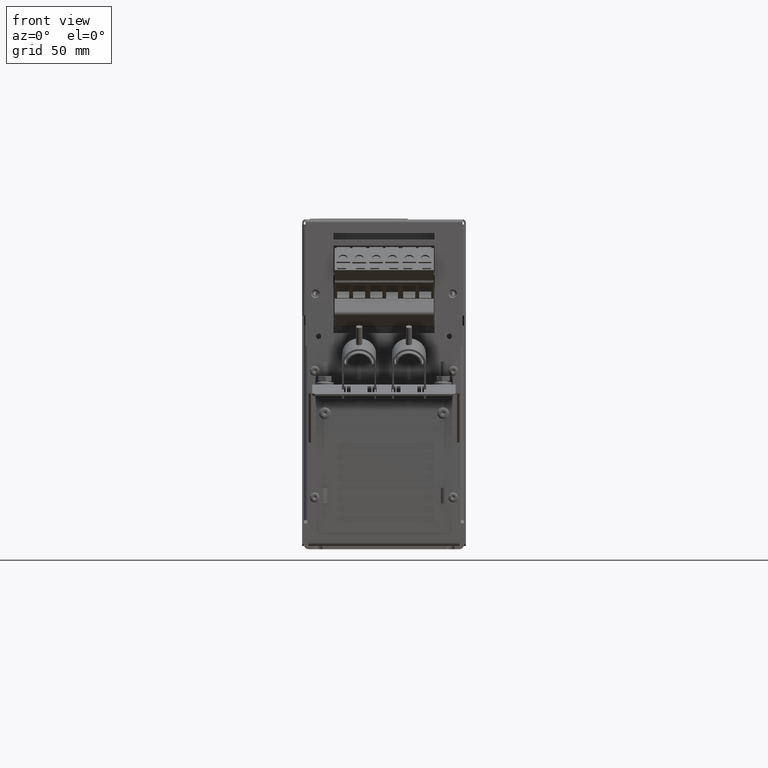
[diagram: clean part render]
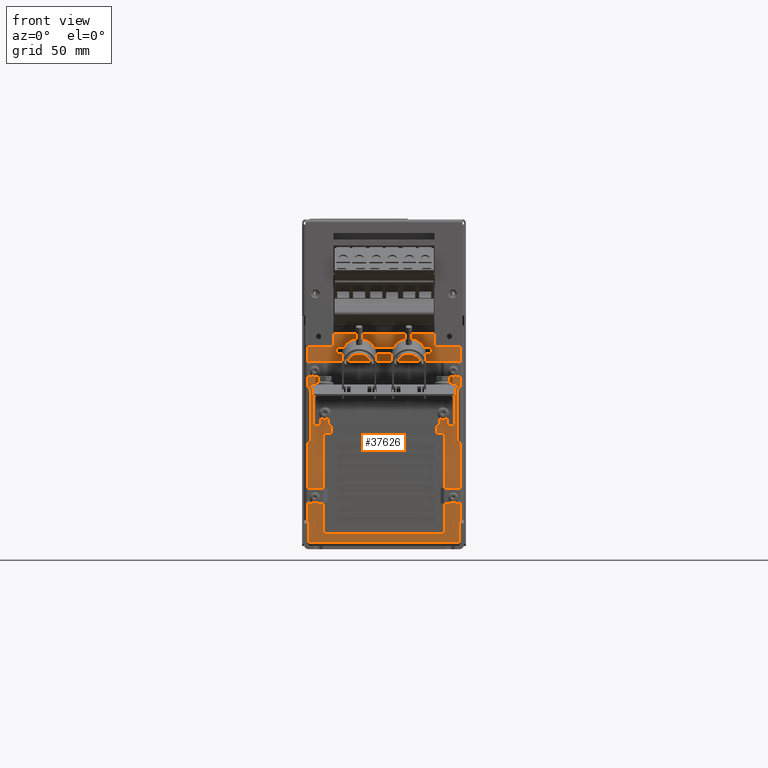
[diagram: same view with one face highlighted and labeled with its STEP entity id]
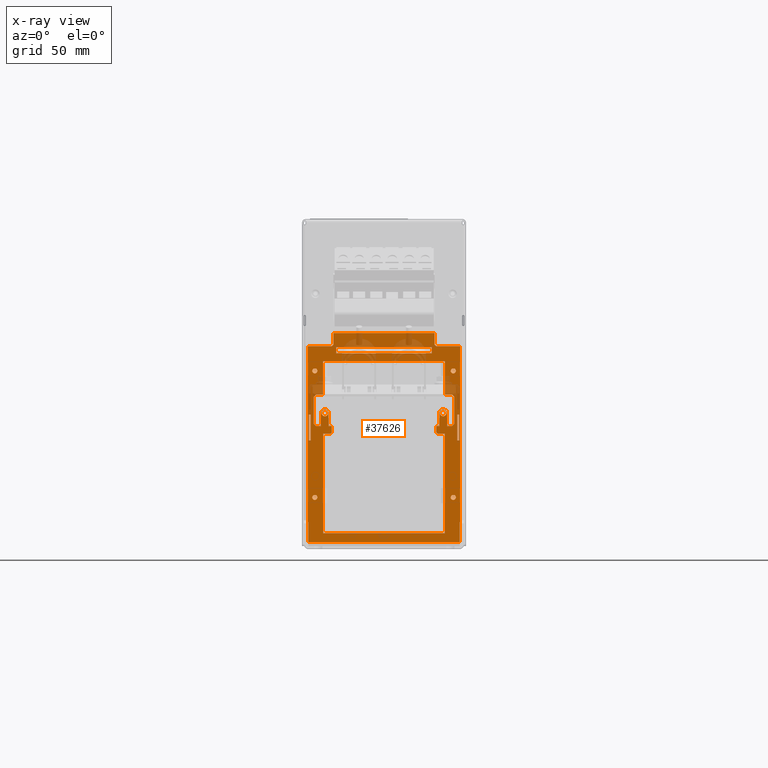
[diagram: x-ray of the same camera — body ghosted, the highlighted face saturated]
A machine part, front view. The second image highlights one B-rep face of the part: STEP entity #37626.
The next image is the same camera in x-ray: the body ghosted, the highlighted face saturated — about 13% of this face is hidden behind the body in this view.
In plain terms, the highlighted planar face has unit normal (0, 1, 0).
Its self-contained STEP definition (entity closure, byte-faithful):
#347=DIRECTION('',(0.E0,3.762154552718E-13,-1.E0));
#348=VECTOR('',#347,2.050965720048E-2);
#349=CARTESIAN_POINT('',(-5.8E-2,-1.76E-1,1.043412326860E-1));
#350=LINE('',#349,#348);
#367=DIRECTION('',(1.E0,-1.679212324746E-12,5.807854197570E-12));
#368=VECTOR('',#367,2.E-3);
#369=CARTESIAN_POINT('',(-6.E-2,-1.76E-1,1.043412326860E-1));
#370=LINE('',#369,#368);
#375=DIRECTION('',(0.E0,-3.058442190341E-13,1.E0));
#376=VECTOR('',#375,2.050965720046E-2);
#377=CARTESIAN_POINT('',(-6.E-2,-1.76E-1,8.383157548552E-2));
#378=LINE('',#377,#376);
#395=DIRECTION('',(-1.E0,9.714451465470E-13,1.013078509970E-12));
#396=VECTOR('',#395,2.E-3);
#397=CARTESIAN_POINT('',(-5.8E-2,-1.76E-1,8.383157548552E-2));
#398=LINE('',#397,#396);
#399=DIRECTION('',(7.071067811865E-1,0.E0,7.071067811866E-1));
#400=VECTOR('',#399,2.121320343560E-3);
#401=CARTESIAN_POINT('',(-4.175E-2,-1.76E-1,1.585E-1));
#402=LINE('',#401,#400);
#403=DIRECTION('',(0.E0,0.E0,1.E0));
#404=VECTOR('',#403,1.8E-2);
#405=CARTESIAN_POINT('',(-4.025E-2,-1.76E-1,1.6E-1));
#406=LINE('',#405,#404);
#407=DIRECTION('',(7.071067811866E-1,0.E0,-7.071067811865E-1));
#408=VECTOR('',#407,2.121320343560E-3);
#409=CARTESIAN_POINT('',(4.025E-2,-1.76E-1,1.6E-1));
#410=LINE('',#409,#408);
#411=DIRECTION('',(1.E0,0.E0,0.E0));
#412=VECTOR('',#411,1.875E-2);
#413=CARTESIAN_POINT('',(4.175E-2,-1.76E-1,1.585E-1));
#414=LINE('',#413,#412);
#415=CARTESIAN_POINT('',(-4.7E-2,-1.76E-1,1.0555E-1));
#416=DIRECTION('',(0.E0,-1.E0,0.E0));
#417=DIRECTION('',(-1.609612193583E-1,0.E0,9.869607316721E-1));
#418=AXIS2_PLACEMENT_3D('',#415,#416,#417);
#420=CARTESIAN_POINT('',(-4.7E-2,-1.76E-1,1.0555E-1));
#421=DIRECTION('',(0.E0,-1.E0,0.E0));
#422=DIRECTION('',(1.609612193583E-1,0.E0,-9.869607316721E-1));
#423=AXIS2_PLACEMENT_3D('',#420,#421,#422);
#425=CARTESIAN_POINT('',(5.5E-2,-1.76E-1,1.391E-1));
#426=DIRECTION('',(0.E0,-1.E0,0.E0));
#427=DIRECTION('',(-9.557024428566E-1,0.E0,2.943345727535E-1));
#428=AXIS2_PLACEMENT_3D('',#425,#426,#427);
#430=CARTESIAN_POINT('',(5.5E-2,-1.76E-1,1.391E-1));
#431=DIRECTION('',(0.E0,-1.E0,0.E0));
#432=DIRECTION('',(9.557024428565E-1,0.E0,-2.943345727536E-1));
#433=AXIS2_PLACEMENT_3D('',#430,#431,#432);
#435=CARTESIAN_POINT('',(5.5E-2,-1.76E-1,3.86E-2));
#436=DIRECTION('',(0.E0,-1.E0,0.E0));
#437=DIRECTION('',(-9.557024428544E-1,0.E0,2.943345727604E-1));
#438=AXIS2_PLACEMENT_3D('',#435,#436,#437);
#440=CARTESIAN_POINT('',(5.5E-2,-1.76E-1,3.86E-2));
#441=DIRECTION('',(0.E0,-1.E0,0.E0));
#442=DIRECTION('',(9.557024428544E-1,0.E0,-2.943345727604E-1));
#443=AXIS2_PLACEMENT_3D('',#440,#441,#442);
#445=CARTESIAN_POINT('',(4.7E-2,-1.76E-1,1.0555E-1));
#446=DIRECTION('',(0.E0,-1.E0,0.E0));
#447=DIRECTION('',(-1.609612193583E-1,0.E0,-9.869607316721E-1));
#448=AXIS2_PLACEMENT_3D('',#445,#446,#447);
#450=CARTESIAN_POINT('',(4.7E-2,-1.76E-1,1.0555E-1));
#451=DIRECTION('',(0.E0,-1.E0,0.E0));
#452=DIRECTION('',(1.609612193583E-1,0.E0,9.869607316721E-1));
#453=AXIS2_PLACEMENT_3D('',#450,#451,#452);
#455=CARTESIAN_POINT('',(-5.5E-2,-1.76E-1,3.86E-2));
#456=DIRECTION('',(0.E0,-1.E0,0.E0));
#457=DIRECTION('',(-9.557024428544E-1,0.E0,2.943345727604E-1));
#458=AXIS2_PLACEMENT_3D('',#455,#456,#457);
#460=CARTESIAN_POINT('',(-5.5E-2,-1.76E-1,3.86E-2));
#461=DIRECTION('',(0.E0,-1.E0,0.E0));
#462=DIRECTION('',(9.557024428544E-1,0.E0,-2.943345727604E-1));
#463=AXIS2_PLACEMENT_3D('',#460,#461,#462);
#465=DIRECTION('',(0.E0,-1.420957654805E-13,-1.E0));
#466=VECTOR('',#465,2.050965720045E-2);
#467=CARTESIAN_POINT('',(5.8E-2,-1.76E-1,1.043412326860E-1));
#468=LINE('',#467,#466);
#469=DIRECTION('',(-7.071067811865E-1,0.E0,-7.071067811865E-1));
#470=VECTOR('',#469,2.828427124746E-3);
#471=CARTESIAN_POINT('',(-5.4E-2,-1.76E-1,1.203E-1));
#472=LINE('',#471,#470);
#473=DIRECTION('',(7.071067811865E-1,0.E0,-7.071067811865E-1));
#474=VECTOR('',#473,2.828427124746E-3);
#475=CARTESIAN_POINT('',(-5.6E-2,-1.76E-1,9.73E-2));
#476=LINE('',#475,#474);
#477=CARTESIAN_POINT('',(-4.7E-2,-1.76E-1,1.0555E-1));
#478=DIRECTION('',(0.E0,1.E0,0.E0));
#479=DIRECTION('',(-1.E0,0.E0,0.E0));
#480=AXIS2_PLACEMENT_3D('',#477,#478,#479);
#482=CARTESIAN_POINT('',(-4.7E-2,-1.76E-1,1.0555E-1));
#483=DIRECTION('',(0.E0,1.E0,0.E0));
#484=DIRECTION('',(0.E0,0.E0,1.E0));
#485=AXIS2_PLACEMENT_3D('',#482,#483,#484);
#487=DIRECTION('',(-7.071067811865E-1,0.E0,-7.071067811865E-1));
#488=VECTOR('',#487,1.414213562373E-3);
#489=CARTESIAN_POINT('',(-4.15E-2,-1.76E-1,9.03E-2));
#490=LINE('',#489,#488);
#491=DIRECTION('',(-7.071067811865E-1,0.E0,7.071067811865E-1));
#492=VECTOR('',#491,1.414213562373E-3);
#493=CARTESIAN_POINT('',(4.25E-2,-1.76E-1,8.93E-2));
#494=LINE('',#493,#492);
#495=CARTESIAN_POINT('',(4.7E-2,-1.76E-1,1.0555E-1));
#496=DIRECTION('',(0.E0,1.E0,0.E0));
#497=DIRECTION('',(-1.E0,0.E0,0.E0));
#498=AXIS2_PLACEMENT_3D('',#495,#496,#497);
#500=CARTESIAN_POINT('',(4.7E-2,-1.76E-1,1.0555E-1));
#501=DIRECTION('',(0.E0,1.E0,0.E0));
#502=DIRECTION('',(0.E0,0.E0,1.E0));
#503=AXIS2_PLACEMENT_3D('',#500,#501,#502);
#505=DIRECTION('',(7.071067811865E-1,0.E0,7.071067811865E-1));
#506=VECTOR('',#505,2.828427124746E-3);
#507=CARTESIAN_POINT('',(5.4E-2,-1.76E-1,9.53E-2));
#508=LINE('',#507,#506);
#509=DIRECTION('',(-7.071067811865E-1,0.E0,7.071067811865E-1));
#510=VECTOR('',#509,2.828427124746E-3);
#511=CARTESIAN_POINT('',(5.6E-2,-1.76E-1,1.183E-1));
#512=LINE('',#511,#510);
#513=CARTESIAN_POINT('',(-5.5E-2,-1.76E-1,1.391E-1));
#514=DIRECTION('',(0.E0,-1.E0,0.E0));
#515=DIRECTION('',(-9.557024428566E-1,0.E0,2.943345727535E-1));
#516=AXIS2_PLACEMENT_3D('',#513,#514,#515);
#518=CARTESIAN_POINT('',(-5.5E-2,-1.76E-1,1.391E-1));
#519=DIRECTION('',(0.E0,-1.E0,0.E0));
#520=DIRECTION('',(9.557024428565E-1,0.E0,-2.943345727536E-1));
#521=AXIS2_PLACEMENT_3D('',#518,#519,#520);
#523=DIRECTION('',(-1.E0,0.E0,0.E0));
#524=VECTOR('',#523,1.875E-2);
#525=CARTESIAN_POINT('',(-4.175E-2,-1.76E-1,1.585E-1));
#526=LINE('',#525,#524);
#567=DIRECTION('',(-1.E0,-3.330669073878E-13,-2.442490654177E-12));
#568=VECTOR('',#567,2.499999999998E-4);
#569=CARTESIAN_POINT('',(4.025E-2,-1.76E-1,1.78E-1));
#570=LINE('',#569,#568);
#601=DIRECTION('',(0.E0,0.E0,-1.E0));
#602=VECTOR('',#601,8.863827628E-3);
#603=CARTESIAN_POINT('',(4.E-2,-1.76E-1,1.78E-1));
#604=LINE('',#603,#602);
#605=DIRECTION('',(-1.E0,0.E0,0.E0));
#606=VECTOR('',#605,8.E-2);
#607=CARTESIAN_POINT('',(4.E-2,-1.76E-1,1.691361723720E-1));
#608=LINE('',#607,#606);
#617=DIRECTION('',(0.E0,0.E0,1.E0));
#618=VECTOR('',#617,8.863827628E-3);
#619=CARTESIAN_POINT('',(-4.E-2,-1.76E-1,1.691361723720E-1));
#620=LINE('',#619,#618);
#1924=DIRECTION('',(-1.156482317318E-14,0.E0,1.E0));
#1925=VECTOR('',#1924,1.8E-2);
#1926=CARTESIAN_POINT('',(4.025E-2,-1.76E-1,1.6E-1));
#1927=LINE('',#1926,#1925);
#4541=DIRECTION('',(1.E0,0.E0,0.E0));
#4542=VECTOR('',#4541,4.E-4);
#4543=CARTESIAN_POINT('',(6.01E-2,-1.76E-1,1.9E-2));
#4544=LINE('',#4543,#4542);
#4581=DIRECTION('',(1.E0,0.E0,-2.602085213965E-14));
#4582=VECTOR('',#4581,4.E-4);
#4583=CARTESIAN_POINT('',(-6.05E-2,-1.76E-1,1.9E-2));
#4584=LINE('',#4583,#4582);
#4619=DIRECTION('',(0.E0,0.E0,-1.E0));
#4620=VECTOR('',#4619,1.395E-1);
#4621=CARTESIAN_POINT('',(-6.05E-2,-1.76E-1,1.585E-1));
#4622=LINE('',#4621,#4620);
#4804=DIRECTION('',(-1.E0,0.E0,0.E0));
#4805=VECTOR('',#4804,2.5E-4);
#4806=CARTESIAN_POINT('',(-4.E-2,-1.76E-1,1.78E-1));
#4807=LINE('',#4806,#4805);
#4812=DIRECTION('',(0.E0,0.E0,-1.E0));
#4813=VECTOR('',#4812,1.6E-2);
#4814=CARTESIAN_POINT('',(-6.01E-2,-1.76E-1,1.9E-2));
#4815=LINE('',#4814,#4813);
#4825=DIRECTION('',(1.E0,0.E0,0.E0));
#4826=VECTOR('',#4825,1.202E-1);
#4827=CARTESIAN_POINT('',(-6.01E-2,-1.76E-1,3.000000000001E-3));
#4828=LINE('',#4827,#4826);
#4838=DIRECTION('',(0.E0,0.E0,1.E0));
#4839=VECTOR('',#4838,1.6E-2);
#4840=CARTESIAN_POINT('',(6.01E-2,-1.76E-1,3.000000000001E-3));
#4841=LINE('',#4840,#4839);
#5295=DIRECTION('',(0.E0,0.E0,1.E0));
#5296=VECTOR('',#5295,5.E-3);
#5297=CARTESIAN_POINT('',(-4.15E-2,-1.76E-1,9.03E-2));
#5298=LINE('',#5297,#5296);
#5319=DIRECTION('',(1.E0,0.E0,0.E0));
#5320=VECTOR('',#5319,6.E-3);
#5321=CARTESIAN_POINT('',(-4.85E-2,-1.76E-1,8.93E-2));
#5322=LINE('',#5321,#5320);
#5331=DIRECTION('',(0.E0,0.E0,1.E0));
#5332=VECTOR('',#5331,7.93E-2);
#5333=CARTESIAN_POINT('',(-4.85E-2,-1.76E-1,1.E-2));
#5334=LINE('',#5333,#5332);
#5343=DIRECTION('',(-1.E0,0.E0,0.E0));
#5344=VECTOR('',#5343,9.7E-2);
#5345=CARTESIAN_POINT('',(4.85E-2,-1.76E-1,1.E-2));
#5346=LINE('',#5345,#5344);
#5355=DIRECTION('',(0.E0,0.E0,-1.E0));
#5356=VECTOR('',#5355,7.93E-2);
#5357=CARTESIAN_POINT('',(4.85E-2,-1.76E-1,8.93E-2));
#5358=LINE('',#5357,#5356);
#5367=DIRECTION('',(1.E0,0.E0,0.E0));
#5368=VECTOR('',#5367,6.E-3);
#5369=CARTESIAN_POINT('',(4.25E-2,-1.76E-1,8.93E-2));
#5370=LINE('',#5369,#5368);
#5387=DIRECTION('',(0.E0,0.E0,-1.E0));
#5388=VECTOR('',#5387,5.E-3);
#5389=CARTESIAN_POINT('',(4.15E-2,-1.76E-1,9.53E-2));
#5390=LINE('',#5389,#5388);
#5419=DIRECTION('',(0.E0,0.E0,-1.E0));
#5420=VECTOR('',#5419,2.67E-2);
#5421=CARTESIAN_POINT('',(4.85E-2,-1.76E-1,1.47E-1));
#5422=LINE('',#5421,#5420);
#5435=DIRECTION('',(1.E0,0.E0,0.E0));
#5436=VECTOR('',#5435,9.7E-2);
#5437=CARTESIAN_POINT('',(-4.85E-2,-1.76E-1,1.47E-1));
#5438=LINE('',#5437,#5436);
#5451=DIRECTION('',(0.E0,0.E0,1.E0));
#5452=VECTOR('',#5451,2.67E-2);
#5453=CARTESIAN_POINT('',(-4.85E-2,-1.76E-1,1.203E-1));
#5454=LINE('',#5453,#5452);
#5483=DIRECTION('',(-1.E0,0.E0,0.E0));
#5484=VECTOR('',#5483,2.5E-3);
#5485=CARTESIAN_POINT('',(-4.15E-2,-1.76E-1,9.53E-2));
#5486=LINE('',#5485,#5484);
#5491=DIRECTION('',(-1.E0,0.E0,0.E0));
#5492=VECTOR('',#5491,2.5E-3);
#5493=CARTESIAN_POINT('',(4.4E-2,-1.76E-1,9.53E-2));
#5494=LINE('',#5493,#5492);
#5503=DIRECTION('',(0.E0,0.E0,1.E0));
#5504=VECTOR('',#5503,1.025E-2);
#5505=CARTESIAN_POINT('',(-4.4E-2,-1.76E-1,9.53E-2));
#5506=LINE('',#5505,#5504);
#5515=DIRECTION('',(0.E0,0.E0,-1.E0));
#5516=VECTOR('',#5515,1.025E-2);
#5517=CARTESIAN_POINT('',(-5.E-2,-1.76E-1,1.0555E-1));
#5518=LINE('',#5517,#5516);
#6048=DIRECTION('',(-1.E0,0.E0,0.E0));
#6049=VECTOR('',#6048,4.E-3);
#6050=CARTESIAN_POINT('',(-5.E-2,-1.76E-1,9.53E-2));
#6051=LINE('',#6050,#6049);
#6060=DIRECTION('',(0.E0,0.E0,1.E0));
#6061=VECTOR('',#6060,2.1E-2);
#6062=CARTESIAN_POINT('',(-5.6E-2,-1.76E-1,9.73E-2));
#6063=LINE('',#6062,#6061);
#6072=DIRECTION('',(1.E0,0.E0,0.E0));
#6073=VECTOR('',#6072,5.5E-3);
#6074=CARTESIAN_POINT('',(-5.4E-2,-1.76E-1,1.203E-1));
#6075=LINE('',#6074,#6073);
#6963=DIRECTION('',(0.E0,-7.578440825623E-14,-1.E0));
#6964=VECTOR('',#6963,2.050965720046E-2);
#6965=CARTESIAN_POINT('',(6.E-2,-1.76E-1,1.043412326860E-1));
#6966=LINE('',#6965,#6964);
#6987=DIRECTION('',(1.E0,-7.077671781985E-13,5.773159728051E-12));
#6988=VECTOR('',#6987,2.E-3);
#6989=CARTESIAN_POINT('',(5.8E-2,-1.76E-1,1.043412326860E-1));
#6990=LINE('',#6989,#6988);
#7015=DIRECTION('',(-1.E0,4.163336342344E-14,1.262878690511E-12));
#7016=VECTOR('',#7015,2.E-3);
#7017=CARTESIAN_POINT('',(6.E-2,-1.76E-1,8.383157548553E-2));
#7018=LINE('',#7017,#7016);
#7265=DIRECTION('',(1.E0,0.E0,0.E0));
#7266=VECTOR('',#7265,5.5E-3);
#7267=CARTESIAN_POINT('',(4.85E-2,-1.76E-1,1.203E-1));
#7268=LINE('',#7267,#7266);
#10685=DIRECTION('',(0.E0,0.E0,-1.E0));
#10686=VECTOR('',#10685,2.1E-2);
#10687=CARTESIAN_POINT('',(5.6E-2,-1.76E-1,1.183E-1));
#10688=LINE('',#10687,#10686);
#10697=DIRECTION('',(-1.E0,0.E0,0.E0));
#10698=VECTOR('',#10697,4.E-3);
#10699=CARTESIAN_POINT('',(5.4E-2,-1.76E-1,9.53E-2));
#10700=LINE('',#10699,#10698);
#10705=DIRECTION('',(0.E0,0.E0,1.E0));
#10706=VECTOR('',#10705,1.025E-2);
#10707=CARTESIAN_POINT('',(5.E-2,-1.76E-1,9.53E-2));
#10708=LINE('',#10707,#10706);
#10717=DIRECTION('',(0.E0,0.E0,-1.E0));
#10718=VECTOR('',#10717,1.025E-2);
#10719=CARTESIAN_POINT('',(4.4E-2,-1.76E-1,1.0555E-1));
#10720=LINE('',#10719,#10718);
#14694=DIRECTION('',(-1.E0,0.E0,0.E0));
#14695=VECTOR('',#14694,7.62E-2);
#14696=CARTESIAN_POINT('',(3.81E-2,-1.76E-1,1.53E-1));
#14697=LINE('',#14696,#14695);
#14706=DIRECTION('',(0.E0,0.E0,-1.E0));
#14707=VECTOR('',#14706,5.E-3);
#14708=CARTESIAN_POINT('',(3.81E-2,-1.76E-1,1.58E-1));
#14709=LINE('',#14708,#14707);
#14714=DIRECTION('',(1.E0,0.E0,0.E0));
#14715=VECTOR('',#14714,7.62E-2);
#14716=CARTESIAN_POINT('',(-3.81E-2,-1.76E-1,1.58E-1));
#14717=LINE('',#14716,#14715);
#14726=DIRECTION('',(0.E0,0.E0,1.E0));
#14727=VECTOR('',#14726,5.E-3);
#14728=CARTESIAN_POINT('',(-3.81E-2,-1.76E-1,1.53E-1));
#14729=LINE('',#14728,#14727);
#14742=DIRECTION('',(0.E0,0.E0,1.E0));
#14743=VECTOR('',#14742,1.395E-1);
#14744=CARTESIAN_POINT('',(6.05E-2,-1.76E-1,1.9E-2));
#14745=LINE('',#14744,#14743);
#29655=CARTESIAN_POINT('',(-6.01E-2,-1.76E-1,3.000000000001E-3));
#29656=CARTESIAN_POINT('',(6.01E-2,-1.76E-1,3.000000000001E-3));
#29657=VERTEX_POINT('',#29655);
#29658=VERTEX_POINT('',#29656);
#29659=CARTESIAN_POINT('',(6.01E-2,-1.76E-1,1.9E-2));
#29660=VERTEX_POINT('',#29659);
#29697=CARTESIAN_POINT('',(-4.175E-2,-1.76E-1,1.585E-1));
#29698=CARTESIAN_POINT('',(-6.05E-2,-1.76E-1,1.585E-1));
#29699=VERTEX_POINT('',#29697);
#29700=VERTEX_POINT('',#29698);
#29701=CARTESIAN_POINT('',(-4.025E-2,-1.76E-1,1.6E-1));
#29702=VERTEX_POINT('',#29701);
#29703=CARTESIAN_POINT('',(-4.025E-2,-1.76E-1,1.78E-1));
#29704=VERTEX_POINT('',#29703);
#29705=CARTESIAN_POINT('',(-4.E-2,-1.76E-1,1.78E-1));
#29706=VERTEX_POINT('',#29705);
#29707=CARTESIAN_POINT('',(-4.E-2,-1.76E-1,1.691361723720E-1));
#29708=VERTEX_POINT('',#29707);
#29709=CARTESIAN_POINT('',(4.E-2,-1.76E-1,1.691361723720E-1));
#29710=VERTEX_POINT('',#29709);
#29711=CARTESIAN_POINT('',(4.E-2,-1.76E-1,1.78E-1));
#29712=VERTEX_POINT('',#29711);
#29713=CARTESIAN_POINT('',(4.025E-2,-1.76E-1,1.78E-1));
#29714=VERTEX_POINT('',#29713);
#29715=CARTESIAN_POINT('',(4.025E-2,-1.76E-1,1.6E-1));
#29716=VERTEX_POINT('',#29715);
#29717=CARTESIAN_POINT('',(4.175E-2,-1.76E-1,1.585E-1));
#29718=VERTEX_POINT('',#29717);
#29719=CARTESIAN_POINT('',(6.05E-2,-1.76E-1,1.585E-1));
#29720=VERTEX_POINT('',#29719);
#29721=CARTESIAN_POINT('',(6.05E-2,-1.76E-1,1.9E-2));
#29722=VERTEX_POINT('',#29721);
#29723=CARTESIAN_POINT('',(-6.01E-2,-1.76E-1,1.9E-2));
#29724=VERTEX_POINT('',#29723);
#29725=CARTESIAN_POINT('',(-6.05E-2,-1.76E-1,1.9E-2));
#29726=VERTEX_POINT('',#29725);
#29727=CARTESIAN_POINT('',(-4.740240304840E-2,-1.76E-1,1.080174018292E-1));
#29728=CARTESIAN_POINT('',(-4.659759695160E-2,-1.76E-1,1.030825981708E-1));
#29729=VERTEX_POINT('',#29727);
#29730=VERTEX_POINT('',#29728);
#29731=CARTESIAN_POINT('',(5.308859511429E-2,-1.76E-1,1.396886691455E-1));
#29732=CARTESIAN_POINT('',(5.691140488571E-2,-1.76E-1,1.385113308545E-1));
#29733=VERTEX_POINT('',#29731);
#29734=VERTEX_POINT('',#29732);
#29735=CARTESIAN_POINT('',(5.308859511429E-2,-1.76E-1,3.918866914552E-2));
#29736=CARTESIAN_POINT('',(5.691140488571E-2,-1.76E-1,3.801133085448E-2));
#29737=VERTEX_POINT('',#29735);
#29738=VERTEX_POINT('',#29736);
#29739=CARTESIAN_POINT('',(4.659759695160E-2,-1.76E-1,1.030825981708E-1));
#29740=CARTESIAN_POINT('',(4.740240304840E-2,-1.76E-1,1.080174018292E-1));
#29741=VERTEX_POINT('',#29739);
#29742=VERTEX_POINT('',#29740);
#29743=CARTESIAN_POINT('',(-5.691140488571E-2,-1.76E-1,3.918866914552E-2));
#29744=CARTESIAN_POINT('',(-5.308859511429E-2,-1.76E-1,3.801133085448E-2));
#29745=VERTEX_POINT('',#29743);
#29746=VERTEX_POINT('',#29744);
#29747=CARTESIAN_POINT('',(5.8E-2,-1.76E-1,1.043412326860E-1));
#29748=CARTESIAN_POINT('',(6.E-2,-1.76E-1,1.043412326860E-1));
#29749=VERTEX_POINT('',#29747);
#29750=VERTEX_POINT('',#29748);
#29751=CARTESIAN_POINT('',(5.8E-2,-1.76E-1,8.383157548553E-2));
#29752=VERTEX_POINT('',#29751);
#29753=CARTESIAN_POINT('',(6.E-2,-1.76E-1,8.383157548553E-2));
#29754=VERTEX_POINT('',#29753);
#29755=CARTESIAN_POINT('',(-4.85E-2,-1.76E-1,1.203E-1));
#29756=CARTESIAN_POINT('',(-4.85E-2,-1.76E-1,1.47E-1));
#29757=VERTEX_POINT('',#29755);
#29758=VERTEX_POINT('',#29756);
#29759=CARTESIAN_POINT('',(-5.4E-2,-1.76E-1,1.203E-1));
#29760=VERTEX_POINT('',#29759);
#29761=CARTESIAN_POINT('',(-5.6E-2,-1.76E-1,1.183E-1));
#29762=VERTEX_POINT('',#29761);
#29763=CARTESIAN_POINT('',(-5.6E-2,-1.76E-1,9.73E-2));
#29764=VERTEX_POINT('',#29763);
#29765=CARTESIAN_POINT('',(-5.4E-2,-1.76E-1,9.53E-2));
#29766=VERTEX_POINT('',#29765);
#29767=CARTESIAN_POINT('',(-5.E-2,-1.76E-1,9.53E-2));
#29768=VERTEX_POINT('',#29767);
#29769=CARTESIAN_POINT('',(-5.E-2,-1.76E-1,1.0555E-1));
#29770=VERTEX_POINT('',#29769);
#29771=CARTESIAN_POINT('',(-4.7E-2,-1.76E-1,1.0855E-1));
#29772=VERTEX_POINT('',#29771);
#29773=CARTESIAN_POINT('',(-4.4E-2,-1.76E-1,1.0555E-1));
#29774=VERTEX_POINT('',#29773);
#29775=CARTESIAN_POINT('',(-4.4E-2,-1.76E-1,9.53E-2));
#29776=VERTEX_POINT('',#29775);
#29777=CARTESIAN_POINT('',(-4.15E-2,-1.76E-1,9.53E-2));
#29778=VERTEX_POINT('',#29777);
#29779=CARTESIAN_POINT('',(-4.15E-2,-1.76E-1,9.03E-2));
#29780=VERTEX_POINT('',#29779);
#29781=CARTESIAN_POINT('',(-4.25E-2,-1.76E-1,8.93E-2));
#29782=VERTEX_POINT('',#29781);
#29783=CARTESIAN_POINT('',(-4.85E-2,-1.76E-1,8.93E-2));
#29784=VERTEX_POINT('',#29783);
#29785=CARTESIAN_POINT('',(-4.85E-2,-1.76E-1,1.E-2));
#29786=VERTEX_POINT('',#29785);
#29787=CARTESIAN_POINT('',(4.85E-2,-1.76E-1,1.E-2));
#29788=VERTEX_POINT('',#29787);
#29789=CARTESIAN_POINT('',(4.85E-2,-1.76E-1,8.93E-2));
#29790=VERTEX_POINT('',#29789);
#29791=CARTESIAN_POINT('',(4.25E-2,-1.76E-1,8.93E-2));
#29792=VERTEX_POINT('',#29791);
#29793=CARTESIAN_POINT('',(4.15E-2,-1.76E-1,9.03E-2));
#29794=VERTEX_POINT('',#29793);
#29795=CARTESIAN_POINT('',(4.15E-2,-1.76E-1,9.53E-2));
#29796=VERTEX_POINT('',#29795);
#29797=CARTESIAN_POINT('',(4.4E-2,-1.76E-1,9.53E-2));
#29798=VERTEX_POINT('',#29797);
#29799=CARTESIAN_POINT('',(4.4E-2,-1.76E-1,1.0555E-1));
#29800=VERTEX_POINT('',#29799);
#29801=CARTESIAN_POINT('',(4.7E-2,-1.76E-1,1.0855E-1));
#29802=VERTEX_POINT('',#29801);
#29803=CARTESIAN_POINT('',(5.E-2,-1.76E-1,1.0555E-1));
#29804=VERTEX_POINT('',#29803);
#29805=CARTESIAN_POINT('',(5.E-2,-1.76E-1,9.53E-2));
#29806=VERTEX_POINT('',#29805);
#29807=CARTESIAN_POINT('',(5.4E-2,-1.76E-1,9.53E-2));
#29808=VERTEX_POINT('',#29807);
#29809=CARTESIAN_POINT('',(5.6E-2,-1.76E-1,9.73E-2));
#29810=VERTEX_POINT('',#29809);
#29811=CARTESIAN_POINT('',(5.6E-2,-1.76E-1,1.183E-1));
#29812=VERTEX_POINT('',#29811);
#29813=CARTESIAN_POINT('',(5.4E-2,-1.76E-1,1.203E-1));
#29814=VERTEX_POINT('',#29813);
#29815=CARTESIAN_POINT('',(4.85E-2,-1.76E-1,1.203E-1));
#29816=VERTEX_POINT('',#29815);
#29817=CARTESIAN_POINT('',(4.85E-2,-1.76E-1,1.47E-1));
#29818=VERTEX_POINT('',#29817);
#29819=CARTESIAN_POINT('',(-5.8E-2,-1.76E-1,8.383157548552E-2));
#29820=CARTESIAN_POINT('',(-6.E-2,-1.76E-1,8.383157548552E-2));
#29821=VERTEX_POINT('',#29819);
#29822=VERTEX_POINT('',#29820);
#29823=CARTESIAN_POINT('',(-5.8E-2,-1.76E-1,1.043412326860E-1));
#29824=VERTEX_POINT('',#29823);
#29825=CARTESIAN_POINT('',(-6.E-2,-1.76E-1,1.043412326860E-1));
#29826=VERTEX_POINT('',#29825);
#29827=CARTESIAN_POINT('',(-5.691140488571E-2,-1.76E-1,1.396886691455E-1));
#29828=CARTESIAN_POINT('',(-5.308859511429E-2,-1.76E-1,1.385113308545E-1));
#29829=VERTEX_POINT('',#29827);
#29830=VERTEX_POINT('',#29828);
#29831=CARTESIAN_POINT('',(3.81E-2,-1.76E-1,1.53E-1));
#29832=CARTESIAN_POINT('',(-3.81E-2,-1.76E-1,1.53E-1));
#29833=VERTEX_POINT('',#29831);
#29834=VERTEX_POINT('',#29832);
#29835=CARTESIAN_POINT('',(3.81E-2,-1.76E-1,1.58E-1));
#29836=VERTEX_POINT('',#29835);
#29837=CARTESIAN_POINT('',(-3.81E-2,-1.76E-1,1.58E-1));
#29838=VERTEX_POINT('',#29837);
#37455=CARTESIAN_POINT('',(0.E0,-1.76E-1,2.000000000001E-3));
#37456=DIRECTION('',(0.E0,1.E0,0.E0));
#37457=DIRECTION('',(-1.E0,0.E0,0.E0));
#37458=AXIS2_PLACEMENT_3D('',#37455,#37456,#37457);
#37459=PLANE('',#37458);
#37461=ORIENTED_EDGE('',*,*,#37460,.F.);
#37463=ORIENTED_EDGE('',*,*,#37462,.T.);
#37465=ORIENTED_EDGE('',*,*,#37464,.T.);
#37467=ORIENTED_EDGE('',*,*,#37466,.F.);
#37469=ORIENTED_EDGE('',*,*,#37468,.F.);
#37471=ORIENTED_EDGE('',*,*,#37470,.F.);
#37473=ORIENTED_EDGE('',*,*,#37472,.F.);
#37475=ORIENTED_EDGE('',*,*,#37474,.F.);
#37477=ORIENTED_EDGE('',*,*,#37476,.F.);
#37479=ORIENTED_EDGE('',*,*,#37478,.T.);
#37481=ORIENTED_EDGE('',*,*,#37480,.T.);
#37483=ORIENTED_EDGE('',*,*,#37482,.F.);
#37485=ORIENTED_EDGE('',*,*,#37484,.F.);
#37487=ORIENTED_EDGE('',*,*,#37486,.F.);
#37489=ORIENTED_EDGE('',*,*,#37488,.F.);
#37491=ORIENTED_EDGE('',*,*,#37490,.F.);
#37493=ORIENTED_EDGE('',*,*,#37492,.F.);
#37495=ORIENTED_EDGE('',*,*,#37494,.F.);
#37496=EDGE_LOOP('',(#37461,#37463,#37465,#37467,#37469,#37471,#37473,#37475,
#37477,#37479,#37481,#37483,#37485,#37487,#37489,#37491,#37493,#37495));
#37497=FACE_OUTER_BOUND('',#37496,.F.);
#37499=ORIENTED_EDGE('',*,*,#37498,.T.);
#37501=ORIENTED_EDGE('',*,*,#37500,.T.);
#37502=EDGE_LOOP('',(#37499,#37501));
#37503=FACE_BOUND('',#37502,.F.);
#37505=ORIENTED_EDGE('',*,*,#37504,.T.);
#37507=ORIENTED_EDGE('',*,*,#37506,.T.);
#37508=EDGE_LOOP('',(#37505,#37507));
#37509=FACE_BOUND('',#37508,.F.);
#37511=ORIENTED_EDGE('',*,*,#37510,.T.);
#37513=ORIENTED_EDGE('',*,*,#37512,.T.);
#37514=EDGE_LOOP('',(#37511,#37513));
#37515=FACE_BOUND('',#37514,.F.);
#37517=ORIENTED_EDGE('',*,*,#37516,.T.);
#37519=ORIENTED_EDGE('',*,*,#37518,.T.);
#37520=EDGE_LOOP('',(#37517,#37519));
#37521=FACE_BOUND('',#37520,.F.);
#37523=ORIENTED_EDGE('',*,*,#37522,.T.);
#37525=ORIENTED_EDGE('',*,*,#37524,.T.);
#37526=EDGE_LOOP('',(#37523,#37525));
#37527=FACE_BOUND('',#37526,.F.);
#37529=ORIENTED_EDGE('',*,*,#37528,.F.);
#37531=ORIENTED_EDGE('',*,*,#37530,.T.);
#37533=ORIENTED_EDGE('',*,*,#37532,.F.);
#37535=ORIENTED_EDGE('',*,*,#37534,.F.);
#37536=EDGE_LOOP('',(#37529,#37531,#37533,#37535));
#37537=FACE_BOUND('',#37536,.F.);
#37539=ORIENTED_EDGE('',*,*,#37538,.F.);
#37541=ORIENTED_EDGE('',*,*,#37540,.F.);
#37543=ORIENTED_EDGE('',*,*,#37542,.T.);
#37545=ORIENTED_EDGE('',*,*,#37544,.F.);
#37547=ORIENTED_EDGE('',*,*,#37546,.T.);
#37549=ORIENTED_EDGE('',*,*,#37548,.F.);
#37551=ORIENTED_EDGE('',*,*,#37550,.F.);
#37553=ORIENTED_EDGE('',*,*,#37552,.T.);
#37555=ORIENTED_EDGE('',*,*,#37554,.T.);
#37557=ORIENTED_EDGE('',*,*,#37556,.F.);
#37559=ORIENTED_EDGE('',*,*,#37558,.F.);
#37561=ORIENTED_EDGE('',*,*,#37560,.F.);
#37563=ORIENTED_EDGE('',*,*,#37562,.T.);
#37565=ORIENTED_EDGE('',*,*,#37564,.F.);
#37567=ORIENTED_EDGE('',*,*,#37566,.F.);
#37569=ORIENTED_EDGE('',*,*,#37568,.F.);
#37571=ORIENTED_EDGE('',*,*,#37570,.F.);
#37573=ORIENTED_EDGE('',*,*,#37572,.F.);
#37575=ORIENTED_EDGE('',*,*,#37574,.T.);
#37577=ORIENTED_EDGE('',*,*,#37576,.F.);
#37579=ORIENTED_EDGE('',*,*,#37578,.F.);
#37581=ORIENTED_EDGE('',*,*,#37580,.F.);
#37583=ORIENTED_EDGE('',*,*,#37582,.T.);
#37585=ORIENTED_EDGE('',*,*,#37584,.T.);
#37587=ORIENTED_EDGE('',*,*,#37586,.F.);
#37589=ORIENTED_EDGE('',*,*,#37588,.F.);
#37591=ORIENTED_EDGE('',*,*,#37590,.T.);
#37593=ORIENTED_EDGE('',*,*,#37592,.F.);
#37595=ORIENTED_EDGE('',*,*,#37594,.T.);
#37597=ORIENTED_EDGE('',*,*,#37596,.F.);
#37599=ORIENTED_EDGE('',*,*,#37598,.F.);
#37601=ORIENTED_EDGE('',*,*,#37600,.F.);
#37602=EDGE_LOOP('',(#37539,#37541,#37543,#37545,#37547,#37549,#37551,#37553,
#37555,#37557,#37559,#37561,#37563,#37565,#37567,#37569,#37571,#37573,#37575,
#37577,#37579,#37581,#37583,#37585,#37587,#37589,#37591,#37593,#37595,#37597,
#37599,#37601));
#37603=FACE_BOUND('',#37602,.F.);
#37604=ORIENTED_EDGE('',*,*,#37440,.F.);
#37605=ORIENTED_EDGE('',*,*,#37357,.F.);
#37606=ORIENTED_EDGE('',*,*,#37388,.F.);
#37607=ORIENTED_EDGE('',*,*,#37410,.F.);
#37608=EDGE_LOOP('',(#37604,#37605,#37606,#37607));
#37609=FACE_BOUND('',#37608,.F.);
#37611=ORIENTED_EDGE('',*,*,#37610,.T.);
#37613=ORIENTED_EDGE('',*,*,#37612,.T.);
#37614=EDGE_LOOP('',(#37611,#37613));
#37615=FACE_BOUND('',#37614,.F.);
#37617=ORIENTED_EDGE('',*,*,#37616,.F.);
#37619=ORIENTED_EDGE('',*,*,#37618,.F.);
#37621=ORIENTED_EDGE('',*,*,#37620,.F.);
#37623=ORIENTED_EDGE('',*,*,#37622,.F.);
#37624=EDGE_LOOP('',(#37617,#37619,#37621,#37623));
#37625=FACE_BOUND('',#37624,.F.);
#37626=ADVANCED_FACE('',(#37497,#37503,#37509,#37515,#37521,#37527,#37537,
#37603,#37609,#37615,#37625),#37459,.F.);
#419=CIRCLE('',#418,2.5E-3);
#424=CIRCLE('',#423,2.5E-3);
#429=CIRCLE('',#428,2.E-3);
#434=CIRCLE('',#433,2.E-3);
#439=CIRCLE('',#438,2.E-3);
#444=CIRCLE('',#443,2.E-3);
#449=CIRCLE('',#448,2.5E-3);
#454=CIRCLE('',#453,2.5E-3);
#459=CIRCLE('',#458,2.E-3);
#464=CIRCLE('',#463,2.E-3);
#481=CIRCLE('',#480,3.E-3);
#486=CIRCLE('',#485,3.E-3);
#499=CIRCLE('',#498,3.E-3);
#504=CIRCLE('',#503,3.E-3);
#517=CIRCLE('',#516,2.E-3);
#522=CIRCLE('',#521,2.E-3);
#37357=EDGE_CURVE('',#29824,#29821,#350,.T.);
#37388=EDGE_CURVE('',#29826,#29824,#370,.T.);
#37410=EDGE_CURVE('',#29822,#29826,#378,.T.);
#37440=EDGE_CURVE('',#29821,#29822,#398,.T.);
#37460=EDGE_CURVE('',#29699,#29700,#526,.T.);
#37462=EDGE_CURVE('',#29699,#29702,#402,.T.);
#37464=EDGE_CURVE('',#29702,#29704,#406,.T.);
#37466=EDGE_CURVE('',#29706,#29704,#4807,.T.);
#37468=EDGE_CURVE('',#29708,#29706,#620,.T.);
#37470=EDGE_CURVE('',#29710,#29708,#608,.T.);
#37472=EDGE_CURVE('',#29712,#29710,#604,.T.);
#37474=EDGE_CURVE('',#29714,#29712,#570,.T.);
#37476=EDGE_CURVE('',#29716,#29714,#1927,.T.);
#37478=EDGE_CURVE('',#29716,#29718,#410,.T.);
#37480=EDGE_CURVE('',#29718,#29720,#414,.T.);
#37482=EDGE_CURVE('',#29722,#29720,#14745,.T.);
#37484=EDGE_CURVE('',#29660,#29722,#4544,.T.);
#37486=EDGE_CURVE('',#29658,#29660,#4841,.T.);
#37488=EDGE_CURVE('',#29657,#29658,#4828,.T.);
#37490=EDGE_CURVE('',#29724,#29657,#4815,.T.);
#37492=EDGE_CURVE('',#29726,#29724,#4584,.T.);
#37494=EDGE_CURVE('',#29700,#29726,#4622,.T.);
#37498=EDGE_CURVE('',#29729,#29730,#419,.T.);
#37500=EDGE_CURVE('',#29730,#29729,#424,.T.);
#37504=EDGE_CURVE('',#29733,#29734,#429,.T.);
#37506=EDGE_CURVE('',#29734,#29733,#434,.T.);
#37510=EDGE_CURVE('',#29737,#29738,#439,.T.);
#37512=EDGE_CURVE('',#29738,#29737,#444,.T.);
#37516=EDGE_CURVE('',#29741,#29742,#449,.T.);
#37518=EDGE_CURVE('',#29742,#29741,#454,.T.);
#37522=EDGE_CURVE('',#29745,#29746,#459,.T.);
#37524=EDGE_CURVE('',#29746,#29745,#464,.T.);
#37528=EDGE_CURVE('',#29749,#29750,#6990,.T.);
#37530=EDGE_CURVE('',#29749,#29752,#468,.T.);
#37532=EDGE_CURVE('',#29754,#29752,#7018,.T.);
#37534=EDGE_CURVE('',#29750,#29754,#6966,.T.);
#37538=EDGE_CURVE('',#29757,#29758,#5454,.T.);
#37540=EDGE_CURVE('',#29760,#29757,#6075,.T.);
#37542=EDGE_CURVE('',#29760,#29762,#472,.T.);
#37544=EDGE_CURVE('',#29764,#29762,#6063,.T.);
#37546=EDGE_CURVE('',#29764,#29766,#476,.T.);
#37548=EDGE_CURVE('',#29768,#29766,#6051,.T.);
#37550=EDGE_CURVE('',#29770,#29768,#5518,.T.);
#37552=EDGE_CURVE('',#29770,#29772,#481,.T.);
#37554=EDGE_CURVE('',#29772,#29774,#486,.T.);
#37556=EDGE_CURVE('',#29776,#29774,#5506,.T.);
#37558=EDGE_CURVE('',#29778,#29776,#5486,.T.);
#37560=EDGE_CURVE('',#29780,#29778,#5298,.T.);
#37562=EDGE_CURVE('',#29780,#29782,#490,.T.);
#37564=EDGE_CURVE('',#29784,#29782,#5322,.T.);
#37566=EDGE_CURVE('',#29786,#29784,#5334,.T.);
#37568=EDGE_CURVE('',#29788,#29786,#5346,.T.);
#37570=EDGE_CURVE('',#29790,#29788,#5358,.T.);
#37572=EDGE_CURVE('',#29792,#29790,#5370,.T.);
#37574=EDGE_CURVE('',#29792,#29794,#494,.T.);
#37576=EDGE_CURVE('',#29796,#29794,#5390,.T.);
#37578=EDGE_CURVE('',#29798,#29796,#5494,.T.);
#37580=EDGE_CURVE('',#29800,#29798,#10720,.T.);
#37582=EDGE_CURVE('',#29800,#29802,#499,.T.);
#37584=EDGE_CURVE('',#29802,#29804,#504,.T.);
#37586=EDGE_CURVE('',#29806,#29804,#10708,.T.);
#37588=EDGE_CURVE('',#29808,#29806,#10700,.T.);
#37590=EDGE_CURVE('',#29808,#29810,#508,.T.);
#37592=EDGE_CURVE('',#29812,#29810,#10688,.T.);
#37594=EDGE_CURVE('',#29812,#29814,#512,.T.);
#37596=EDGE_CURVE('',#29816,#29814,#7268,.T.);
#37598=EDGE_CURVE('',#29818,#29816,#5422,.T.);
#37600=EDGE_CURVE('',#29758,#29818,#5438,.T.);
#37610=EDGE_CURVE('',#29829,#29830,#517,.T.);
#37612=EDGE_CURVE('',#29830,#29829,#522,.T.);
#37616=EDGE_CURVE('',#29833,#29834,#14697,.T.);
#37618=EDGE_CURVE('',#29836,#29833,#14709,.T.);
#37620=EDGE_CURVE('',#29838,#29836,#14717,.T.);
#37622=EDGE_CURVE('',#29834,#29838,#14729,.T.);